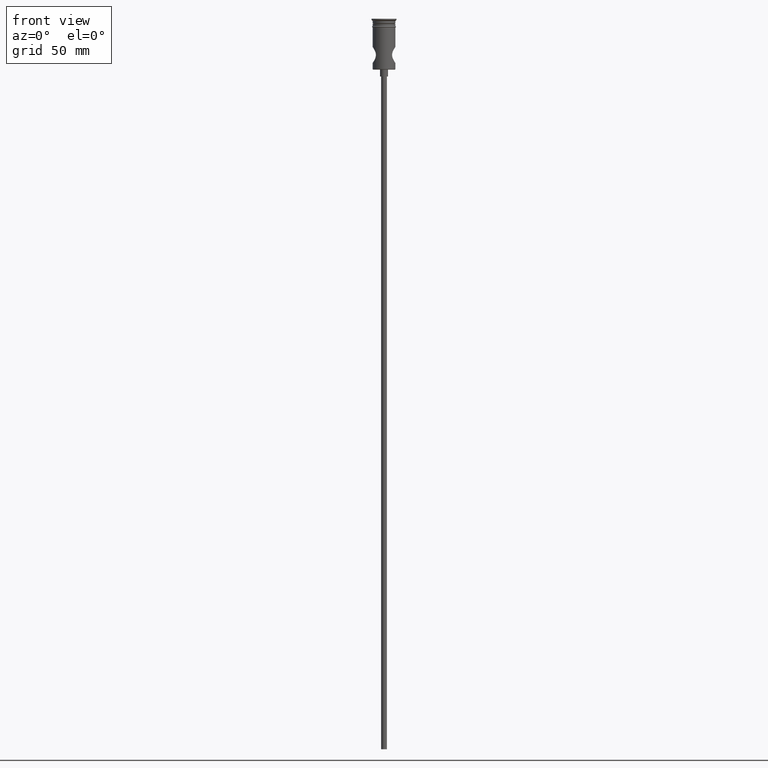
[diagram: clean part render]
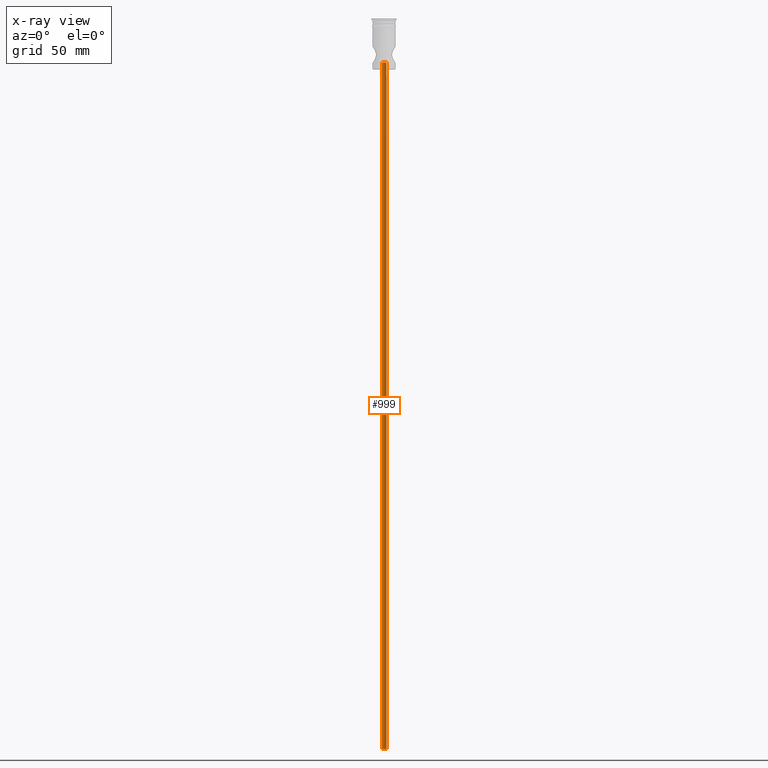
[diagram: x-ray — body ghosted, one internal face saturated and labeled with its STEP entity id]
A machine part, front view, then the same camera in x-ray: the body is ghosted and one INTERNAL B-rep face — a face not visible from any outside direction — is saturated and labeled: STEP entity #999.
In plain terms, the highlighted cylindrical surface (edge-blend (fillet) strip) has radius 1 mm, axis along (-0, -0, -1).
Its self-contained STEP definition (entity closure, byte-faithful):
#16 = CARTESIAN_POINT ( 'NONE',  ( -0.6150493311797187168, 0.7990795749240167112, -19.40884566432808001 ) ) ;
#27 = CARTESIAN_POINT ( 'NONE',  ( 1.000000000000000000, 4.681958892246364514E-21, -19.50000000000000000 ) ) ;
#29 = EDGE_CURVE ( 'NONE', #1313, #1216, #1281, .T. ) ;
#40 = DIRECTION ( 'NONE',  ( -0.000000000000000000, -0.000000000000000000, -1.000000000000000000 ) ) ;
#140 = CARTESIAN_POINT ( 'NONE',  ( 0.5059809035076541228, 0.8725956800019867288, -19.38988811594309425 ) ) ;
#182 = CARTESIAN_POINT ( 'NONE',  ( 0.8734106350840727950, 0.5041672621904196294, -19.46561914214669287 ) ) ;
#191 = CARTESIAN_POINT ( 'NONE',  ( -1.000000000000000000, 0.000000000000000000, 0.0009999999999732445133 ) ) ;
#294 = VECTOR ( 'NONE', #1080, 1000.000000000000000 ) ;
#315 = AXIS2_PLACEMENT_3D ( 'NONE', #322, #875, #678 ) ;
#322 = CARTESIAN_POINT ( 'NONE',  ( 0.000000000000000000, 0.000000000000000000, -322.5000000000000000 ) ) ;
#331 = VERTEX_POINT ( 'NONE', #27 ) ;
#351 = CARTESIAN_POINT ( 'NONE',  ( -0.5041604651539031146, 0.8734111625493790054, -19.38966761113383086 ) ) ;
#352 = LINE ( 'NONE', #1152, #559 ) ;
#355 = VERTEX_POINT ( 'NONE', #476 ) ;
#364 = CARTESIAN_POINT ( 'NONE',  ( -0.1316936354710128432, 1.000019739161273513, -19.35409608116890112 ) ) ;
#375 = CARTESIAN_POINT ( 'NONE',  ( 1.000000000000000000, 1.224646799147353207E-16, -322.5000000000000000 ) ) ;
#401 = CARTESIAN_POINT ( 'NONE',  ( 0.000000000000000000, 0.000000000000000000, 0.0009999999999732445133 ) ) ;
#476 = CARTESIAN_POINT ( 'NONE',  ( -1.000000000000000000, 0.000000000000000000, -19.50000000000000000 ) ) ;
#518 = ORIENTED_EDGE ( 'NONE', *, *, #1089, .F. ) ;
#559 = VECTOR ( 'NONE', #40, 1000.000000000000000 ) ;
#574 = CARTESIAN_POINT ( 'NONE',  ( -0.8728688940508974037, 0.5051183550947857537, -19.46548068172155510 ) ) ;
#618 = DIRECTION ( 'NONE',  ( -0.000000000000000000, -0.000000000000000000, -1.000000000000000000 ) ) ;
#630 = CYLINDRICAL_SURFACE ( 'NONE', #1246, 1.000000000000000000 ) ;
#644 = ORIENTED_EDGE ( 'NONE', *, *, #1282, .T. ) ;
#676 = CARTESIAN_POINT ( 'NONE',  ( 0.2621150761560532283, 0.9740305859285212087, -19.36214649845096858 ) ) ;
#678 = DIRECTION ( 'NONE',  ( -1.000000000000000000, 0.000000000000000000, 0.000000000000000000 ) ) ;
#721 = CARTESIAN_POINT ( 'NONE',  ( 1.000000000000000000, 0.1309286667429949147, -19.49999999999999645 ) ) ;
#752 = EDGE_CURVE ( 'NONE', #355, #1313, #836, .T. ) ;
#789 = CARTESIAN_POINT ( 'NONE',  ( -1.000000000000000000, 0.000000000000000000, -19.50000000000000000 ) ) ;
#836 = LINE ( 'NONE', #191, #294 ) ;
#838 = B_SPLINE_CURVE_WITH_KNOTS ( 'NONE', 3,
 ( #1397, #721, #1178, #182, #896, #1016, #140, #676, #1235, #364, #1137, #351, #16, #872, #574, #1130, #1361, #789 ),
 .UNSPECIFIED., .F., .F.,
 ( 4, 2, 2, 2, 2, 2, 2, 2, 4 ),
 ( 0.003142913064405511523, 0.003535670621078468041, 0.003928428177751424125, 0.004321185734424380642, 0.004713943291097337160, 0.005106700847770293678, 0.005499458404443250195, 0.005892215961116205845, 0.006284973517789162363 ),
 .UNSPECIFIED. ) ;
#866 = CARTESIAN_POINT ( 'NONE',  ( -1.000000000000000000, 0.000000000000000000, -322.5000000000000000 ) ) ;
#872 = CARTESIAN_POINT ( 'NONE',  ( -0.7985123707879597799, 0.6157855475276747814, -19.44667449721106323 ) ) ;
#875 = DIRECTION ( 'NONE',  ( 0.000000000000000000, 0.000000000000000000, -1.000000000000000000 ) ) ;
#896 = CARTESIAN_POINT ( 'NONE',  ( 0.7994811891185863439, 0.6146929329460447677, -19.44688657914280228 ) ) ;
#946 = FACE_OUTER_BOUND ( 'NONE', #1075, .T. ) ;
#999 = ADVANCED_FACE ( 'NONE', ( #946 ), #630, .F. ) ;
#1016 = CARTESIAN_POINT ( 'NONE',  ( 0.6150344307886690398, 0.7992185073637478876, -19.40883033734092322 ) ) ;
#1075 = EDGE_LOOP ( 'NONE', ( #518, #644, #1254, #1136 ) ) ;
#1080 = DIRECTION ( 'NONE',  ( -0.000000000000000000, -0.000000000000000000, -1.000000000000000000 ) ) ;
#1089 = EDGE_CURVE ( 'NONE', #331, #1216, #352, .T. ) ;
#1130 = CARTESIAN_POINT ( 'NONE',  ( -0.9732933389586853057, 0.2640922853737913134, -19.49212774291619965 ) ) ;
#1136 = ORIENTED_EDGE ( 'NONE', *, *, #29, .T. ) ;
#1137 = CARTESIAN_POINT ( 'NONE',  ( -0.2631726871121145006, 0.9735322132565759068, -19.36228026829819271 ) ) ;
#1152 = CARTESIAN_POINT ( 'NONE',  ( 1.000000000000000000, 1.224646799147353207E-16, 0.0009999999999732445133 ) ) ;
#1178 = CARTESIAN_POINT ( 'NONE',  ( 0.9735452106493993618, 0.2631358747190585823, -19.49219990523366519 ) ) ;
#1216 = VERTEX_POINT ( 'NONE', #375 ) ;
#1235 = CARTESIAN_POINT ( 'NONE',  ( 0.1319932390273248490, 0.9999802383981537535, -19.35410785802095646 ) ) ;
#1246 = AXIS2_PLACEMENT_3D ( 'NONE', #401, #618, #1292 ) ;
#1254 = ORIENTED_EDGE ( 'NONE', *, *, #752, .T. ) ;
#1281 = CIRCLE ( 'NONE', #315, 1.000000000000000000 ) ;
#1282 = EDGE_CURVE ( 'NONE', #331, #355, #838, .T. ) ;
#1292 = DIRECTION ( 'NONE',  ( -1.000000000000000000, 0.000000000000000000, 0.000000000000000000 ) ) ;
#1313 = VERTEX_POINT ( 'NONE', #866 ) ;
#1361 = CARTESIAN_POINT ( 'NONE',  ( -1.000000000000000222, 0.1328548843624557663, -19.50000000000000355 ) ) ;
#1397 = CARTESIAN_POINT ( 'NONE',  ( 1.000000000000000000, 4.681958892246364514E-21, -19.50000000000000000 ) ) ;